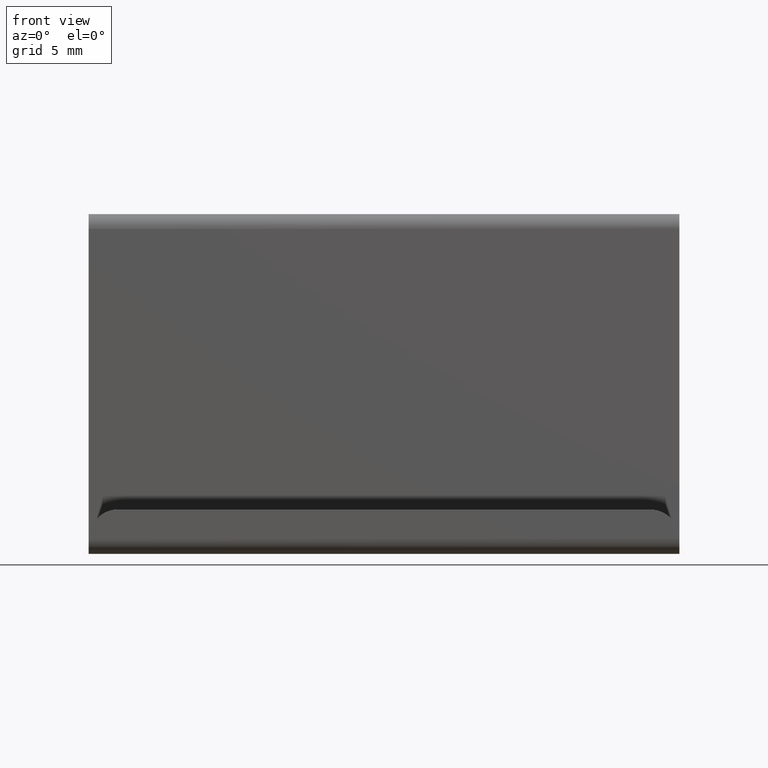
[diagram: clean part render]
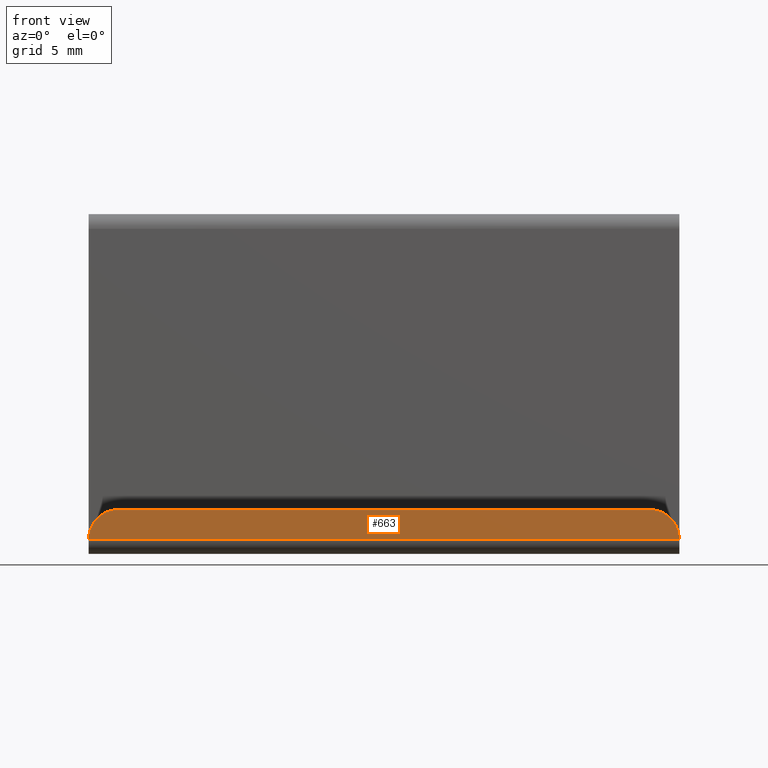
[diagram: same view with one face highlighted and labeled with its STEP entity id]
A machine part, front view. The second image highlights one B-rep face of the part: STEP entity #663.
In plain terms, the highlighted face is a freeform B-spline surface patch.
Its self-contained STEP definition (entity closure, byte-faithful):
#58=CARTESIAN_POINT('',(20.0,-17.999999999999751,1.0));
#59=VERTEX_POINT('',#58);
#60=CARTESIAN_POINT('',(18.0,-17.999999999999751,3.0));
#61=VERTEX_POINT('',#60);
#62=CARTESIAN_POINT('',(20.0,-17.999999999999751,1.0));
#63=CARTESIAN_POINT('',(19.999999999999996,-17.999999999999751,3.0));
#64=CARTESIAN_POINT('',(18.0,-17.999999999999751,3.0));
#72=(BOUNDED_CURVE()B_SPLINE_CURVE(2,(#62,#63,#64),.UNSPECIFIED.,.F.,.U.)CURVE()GEOMETRIC_REPRESENTATION_ITEM()QUASI_UNIFORM_CURVE()RATIONAL_B_SPLINE_CURVE((1.0,0.707106781186548,1.0))REPRESENTATION_ITEM(''));
#73=EDGE_CURVE('',#59,#61,#72,.T.);
#119=CARTESIAN_POINT('',(-18.0,-17.999999999999751,3.0));
#120=VERTEX_POINT('',#119);
#121=CARTESIAN_POINT('',(-20.0,-17.999999999999751,1.0));
#122=VERTEX_POINT('',#121);
#123=CARTESIAN_POINT('',(-18.0,-17.999999999999751,3.0));
#124=CARTESIAN_POINT('',(-19.999999999999996,-17.999999999999751,3.0));
#125=CARTESIAN_POINT('',(-20.0,-17.999999999999751,1.0));
#133=(BOUNDED_CURVE()B_SPLINE_CURVE(2,(#123,#124,#125),.UNSPECIFIED.,.F.,.U.)CURVE()GEOMETRIC_REPRESENTATION_ITEM()QUASI_UNIFORM_CURVE()RATIONAL_B_SPLINE_CURVE((1.0,0.707106781186548,1.0))REPRESENTATION_ITEM(''));
#134=EDGE_CURVE('',#120,#122,#133,.T.);
#317=CARTESIAN_POINT('',(-20.0,-17.999999999999751,1.0));
#318=CARTESIAN_POINT('',(20.0,-17.999999999999751,1.0));
#319=QUASI_UNIFORM_CURVE('',1,(#317,#318),.UNSPECIFIED.,.F.,.U.);
#320=EDGE_CURVE('',#122,#59,#319,.T.);
#648=CARTESIAN_POINT('',(-21.997999922472239,-17.999999999999751,3.099899996123612));
#649=CARTESIAN_POINT('',(-21.997999922472239,-17.999999999999751,0.900099950232208));
#650=CARTESIAN_POINT('',(21.998000995355849,-17.999999999999751,3.099899996123612));
#651=CARTESIAN_POINT('',(21.998000995355849,-17.999999999999751,0.900099950232208));
#652=B_SPLINE_SURFACE_WITH_KNOTS('',1,1,((#648,#650),(#649,#651)),.UNSPECIFIED.,.F.,.F.,.U.,(2,2),(2,2),(0.0,2.199800045891404),(0.0,43.996000917828077),.UNSPECIFIED.);
#653=CARTESIAN_POINT('',(18.0,-17.999999999999751,3.0));
#654=CARTESIAN_POINT('',(-18.0,-17.999999999999751,3.0));
#655=QUASI_UNIFORM_CURVE('',1,(#653,#654),.UNSPECIFIED.,.F.,.U.);
#656=EDGE_CURVE('',#61,#120,#655,.T.);
#657=ORIENTED_EDGE('',*,*,#656,.T.);
#658=ORIENTED_EDGE('',*,*,#134,.T.);
#659=ORIENTED_EDGE('',*,*,#320,.T.);
#660=ORIENTED_EDGE('',*,*,#73,.T.);
#661=EDGE_LOOP('',(#657,#658,#659,#660));
#662=FACE_OUTER_BOUND('',#661,.T.);
#663=ADVANCED_FACE('',(#662),#652,.T.);